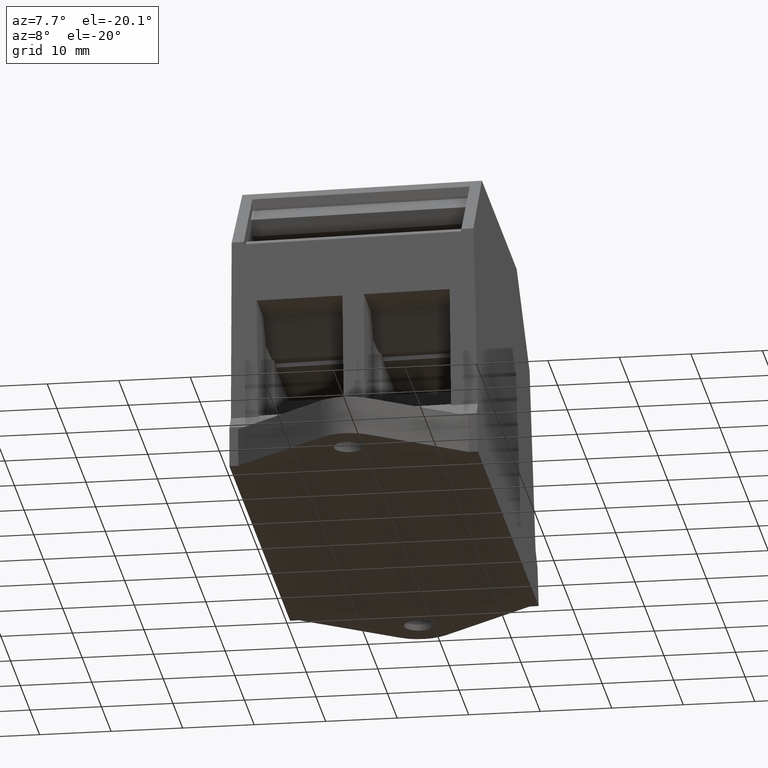
[diagram: clean part render]
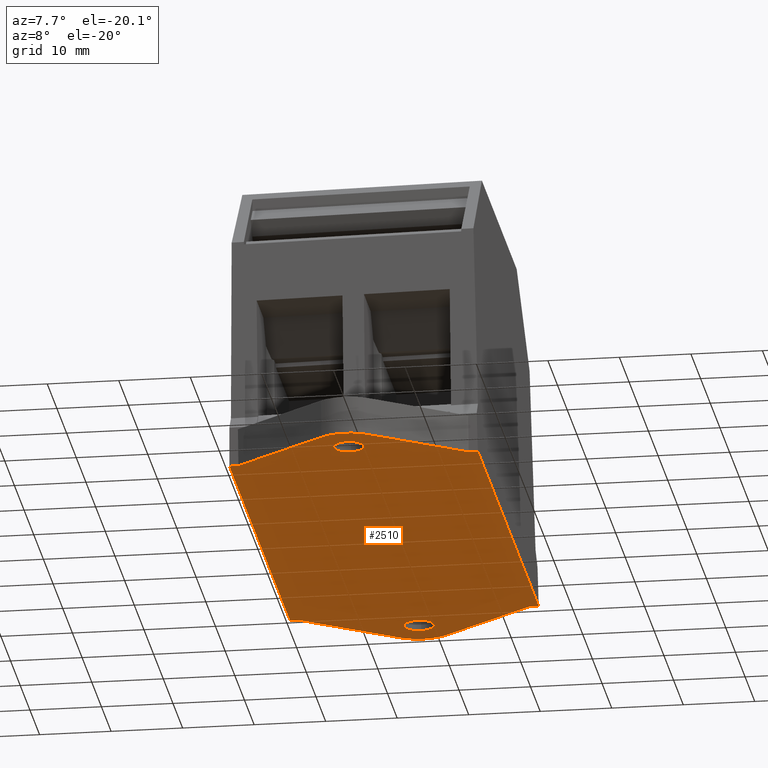
[diagram: same view with one face highlighted and labeled with its STEP entity id]
A machine part, auxiliary view. The second image highlights one B-rep face of the part: STEP entity #2510.
In plain terms, the highlighted planar face has unit normal (0.014, -0, -0.9999).
Its self-contained STEP definition (entity closure, byte-faithful):
#1200=CARTESIAN_POINT('',(62.0472364380754,90.2402848818933,
-9.12696301106827));
#1210=DIRECTION('',(1.73472347597681E-17,-1.,-6.04442711160669E-18));
#1220=DIRECTION('',(-1.96637802670544E-19,-6.04442711160669E-18,1.));
#1230=AXIS2_PLACEMENT_3D('',#1200,#1210,#1220);
#1240=PLANE('',#1230);
#1250=CARTESIAN_POINT('',(98.3972364380725,90.2402848818933,
7.49999999999998));
#1260=DIRECTION('',(-1.73499805198761E-17,1.,6.04442711160669E-18));
#1270=DIRECTION('',(-1.,-1.73472347597681E-17,6.05054028165098E-17));
#1280=AXIS2_PLACEMENT_3D('',#1250,#1260,#1270);
#1290=CIRCLE('',#1280,2.1);
#1300=CARTESIAN_POINT('',(96.2972364380725,90.2402848818933,
7.49999999999998));
#1310=VERTEX_POINT('',#1300);
#1320=CARTESIAN_POINT('',(100.497236438072,90.2402848818933,
7.49999999999998));
#1330=VERTEX_POINT('',#1320);
#1340=EDGE_CURVE('',#1310,#1330,#1290,.T.);
#1350=ORIENTED_EDGE('',*,*,#1340,.T.);
#1360=EDGE_CURVE('',#1330,#1310,#1290,.T.);
#1370=ORIENTED_EDGE('',*,*,#1360,.T.);
#1380=EDGE_LOOP('',(#1370,#1350));
#1390=FACE_BOUND('',#1380,.T.);
#1400=CARTESIAN_POINT('',(25.6972364380783,90.2402848818933,
7.49999999999999));
#1410=DIRECTION('',(1.73499805198761E-17,-1.,-6.04442711160669E-18));
#1420=DIRECTION('',(1.,1.73472347597681E-17,-6.05054028165098E-17));
#1430=AXIS2_PLACEMENT_3D('',#1400,#1410,#1420);
#1440=CIRCLE('',#1430,2.1);
#1450=CARTESIAN_POINT('',(27.7972364380783,90.2402848818933,
7.49999999999999));
#1460=VERTEX_POINT('',#1450);
#1470=CARTESIAN_POINT('',(23.5972364380783,90.2402848818933,
7.49999999999999));
#1480=VERTEX_POINT('',#1470);
#1490=EDGE_CURVE('',#1460,#1480,#1440,.T.);
#1500=ORIENTED_EDGE('',*,*,#1490,.F.);
#1510=EDGE_CURVE('',#1480,#1460,#1440,.T.);
#1520=ORIENTED_EDGE('',*,*,#1510,.F.);
#1530=EDGE_LOOP('',(#1520,#1500));
#1540=FACE_BOUND('',#1530,.T.);
#1550=CARTESIAN_POINT('',(124.094472876151,90.2402848818933,
-9.87696301106826));
#1560=DIRECTION('',(1.,1.73472347597681E-17,-6.05054028165098E-17));
#1570=VECTOR('',#1560,1.);
#1580=LINE('',#1550,#1570);
#1590=CARTESIAN_POINT('',(30.5972364380783,90.2402848818933,
-9.87696301106826));
#1600=VERTEX_POINT('',#1590);
#1610=CARTESIAN_POINT('',(93.4972364380725,90.2402848818933,
-9.87696301106826));
#1620=VERTEX_POINT('',#1610);
#1630=EDGE_CURVE('',#1600,#1620,#1580,.T.);
#1640=ORIENTED_EDGE('',*,*,#1630,.T.);
#1650=CARTESIAN_POINT('',(30.5972364380783,90.2402848818933,15.));
#1660=DIRECTION('',(6.05186838565177E-17,-6.04442711160669E-18,1.));
#1670=VECTOR('',#1660,1.);
#1680=LINE('',#1650,#1670);
#1690=CARTESIAN_POINT('',(30.5972364380783,90.2402848818933,
-8.60143030218126));
#1700=VERTEX_POINT('',#1690);
#1710=EDGE_CURVE('',#1600,#1700,#1680,.T.);
#1720=ORIENTED_EDGE('',*,*,#1710,.F.);
#1730=CARTESIAN_POINT('',(27.1596544675037,90.2402848818933,
-3.87000462774458));
#1740=DIRECTION('',(-0.587785252292473,-1.50864930143975E-17,
0.809016994374947));
#1750=VECTOR('',#1740,1.);
#1760=LINE('',#1730,#1750);
#1770=CARTESIAN_POINT('',(21.2476429690161,90.2402848818933,
4.26718111239137));
#1780=VERTEX_POINT('',#1770);
#1790=EDGE_CURVE('',#1700,#1780,#1760,.T.);
#1800=ORIENTED_EDGE('',*,*,#1790,.F.);
#1810=CARTESIAN_POINT('',(25.6972364380783,90.2402848818933,7.5));
#1820=DIRECTION('',(1.73499805198761E-17,-1.,-6.04442711160669E-18));
#1830=DIRECTION('',(1.,1.73472347597681E-17,-6.05054028165098E-17));
#1840=AXIS2_PLACEMENT_3D('',#1810,#1820,#1830);
#1850=CIRCLE('',#1840,5.49999999999999);
#1860=CARTESIAN_POINT('',(21.2476429690161,90.2402848818933,
10.7328188876086));
#1870=VERTEX_POINT('',#1860);
#1880=EDGE_CURVE('',#1870,#1780,#1850,.T.);
#1890=ORIENTED_EDGE('',*,*,#1880,.T.);
#1900=CARTESIAN_POINT('',(10.6380706561553,90.2402848818933,
-3.87000462774458));
#1910=DIRECTION('',(-0.587785252292473,-5.30640450529655E-18,
-0.809016994374947));
#1920=VECTOR('',#1910,1.);
#1930=LINE('',#1900,#1920);
#1940=CARTESIAN_POINT('',(30.5972364380783,90.2402848818933,
23.6014303021812));
#1950=VERTEX_POINT('',#1940);
#1960=EDGE_CURVE('',#1950,#1870,#1930,.T.);
#1970=ORIENTED_EDGE('',*,*,#1960,.T.);
#1980=CARTESIAN_POINT('',(30.5972364380783,90.2402848818933,15.));
#1990=DIRECTION('',(6.05186838565177E-17,-6.04442711160669E-18,1.));
#2000=VECTOR('',#1990,1.);
#2010=LINE('',#1980,#2000);
#2020=CARTESIAN_POINT('',(30.5972364380783,90.2402848818933,
24.8769630110683));
#2030=VERTEX_POINT('',#2020);
#2040=EDGE_CURVE('',#1950,#2030,#2010,.T.);
#2050=ORIENTED_EDGE('',*,*,#2040,.F.);
#2060=CARTESIAN_POINT('',(124.094472876151,90.2402848818933,
24.8769630110682));
#2070=DIRECTION('',(-1.,-1.73472347597681E-17,6.05054028165098E-17));
#2080=VECTOR('',#2070,1.);
#2090=LINE('',#2060,#2080);
#2100=CARTESIAN_POINT('',(93.4972364380725,90.2402848818933,
24.8769630110682));
#2110=VERTEX_POINT('',#2100);
#2120=EDGE_CURVE('',#2110,#2030,#2090,.T.);
#2130=ORIENTED_EDGE('',*,*,#2120,.T.);
#2140=CARTESIAN_POINT('',(93.4972364380725,90.2402848818933,15.));
#2150=DIRECTION('',(-6.05186838565177E-17,6.04442711160669E-18,-1.));
#2160=VECTOR('',#2150,1.);
#2170=LINE('',#2140,#2160);
#2180=CARTESIAN_POINT('',(93.4972364380725,90.2402848818933,
23.6014303021812));
#2190=VERTEX_POINT('',#2180);
#2200=EDGE_CURVE('',#2110,#2190,#2170,.T.);
#2210=ORIENTED_EDGE('',*,*,#2200,.F.);
#2220=CARTESIAN_POINT('',(113.456402219996,90.2402848818933,
-3.87000462774459));
#2230=DIRECTION('',(0.587785252292473,1.50864930143975E-17,
-0.809016994374947));
#2240=VECTOR('',#2230,1.);
#2250=LINE('',#2220,#2240);
#2260=CARTESIAN_POINT('',(102.846829907135,90.2402848818933,
10.7328188876086));
#2270=VERTEX_POINT('',#2260);
#2280=EDGE_CURVE('',#2190,#2270,#2250,.T.);
#2290=ORIENTED_EDGE('',*,*,#2280,.F.);
#2300=CARTESIAN_POINT('',(98.3972364380725,90.2402848818933,
7.49999999999999));
#2310=DIRECTION('',(-1.73499805198761E-17,1.,6.04442711160669E-18));
#2320=DIRECTION('',(-1.,-1.73472347597681E-17,6.05054028165098E-17));
#2330=AXIS2_PLACEMENT_3D('',#2300,#2310,#2320);
#2340=CIRCLE('',#2330,5.49999999999999);
#2350=CARTESIAN_POINT('',(102.846829907135,90.2402848818933,
4.26718111239139));
#2360=VERTEX_POINT('',#2350);
#2370=EDGE_CURVE('',#2270,#2360,#2340,.T.);
#2380=ORIENTED_EDGE('',*,*,#2370,.F.);
#2390=CARTESIAN_POINT('',(96.9348184086472,90.2402848818933,
-3.87000462774458));
#2400=DIRECTION('',(0.587785252292473,5.30640450529655E-18,
0.809016994374947));
#2410=VECTOR('',#2400,1.);
#2420=LINE('',#2390,#2410);
#2430=CARTESIAN_POINT('',(93.4972364380725,90.2402848818933,
-8.60143030218125));
#2440=VERTEX_POINT('',#2430);
#2450=EDGE_CURVE('',#2440,#2360,#2420,.T.);
#2460=ORIENTED_EDGE('',*,*,#2450,.T.);
#2470=EDGE_CURVE('',#2440,#1620,#2170,.T.);
#2480=ORIENTED_EDGE('',*,*,#2470,.F.);
#2490=EDGE_LOOP('',(#2480,#2460,#2380,#2290,#2210,#2130,#2050,#1970,
#1890,#1800,#1720,#1640));
#2500=FACE_OUTER_BOUND('',#2490,.T.);
#2510=ADVANCED_FACE('',(#1390,#1540,#2500),#1240,.T.);